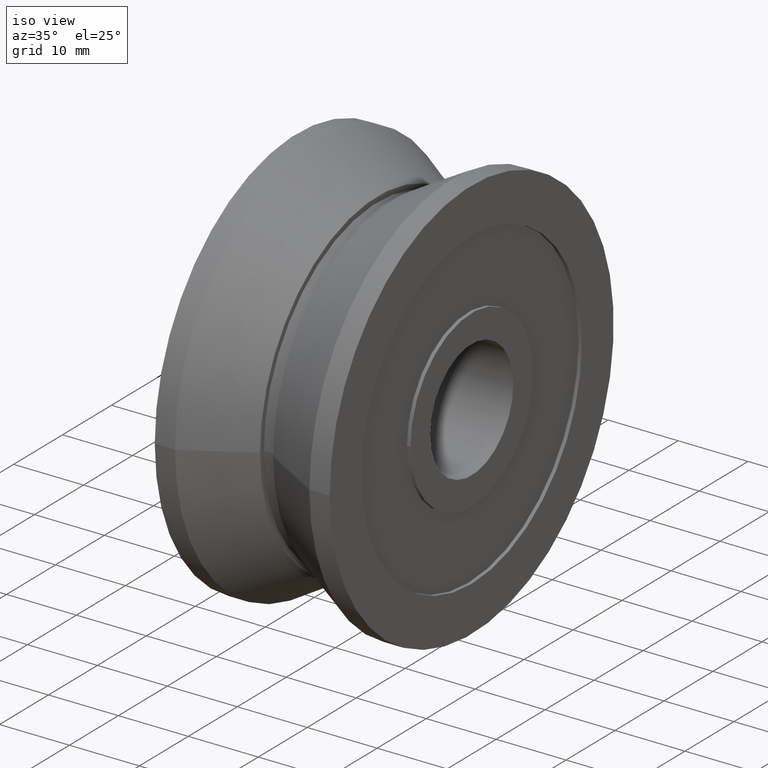
[diagram: clean part render]
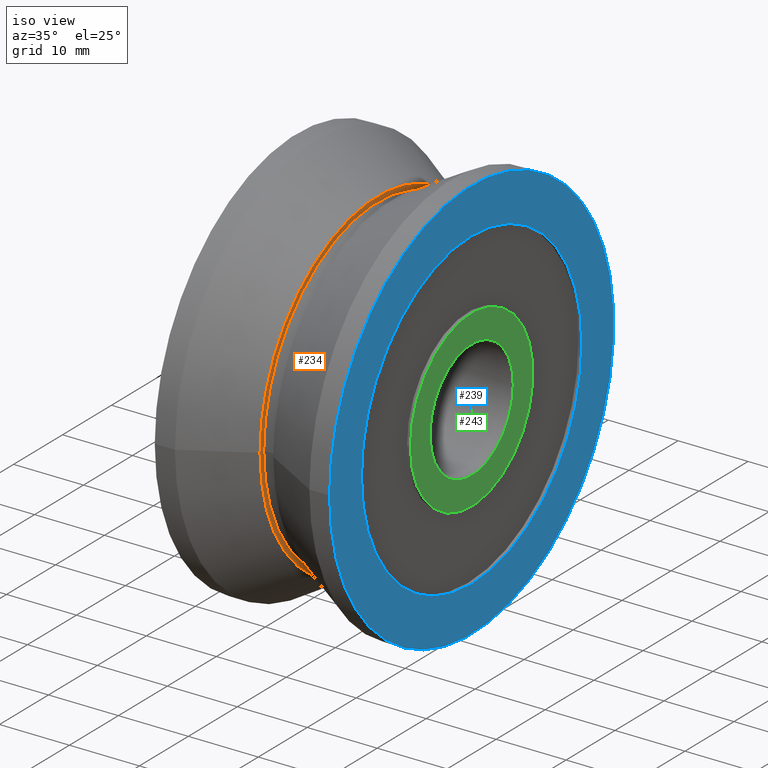
[diagram: same view with three faces highlighted in distinct colors, each labeled with its STEP entity id]
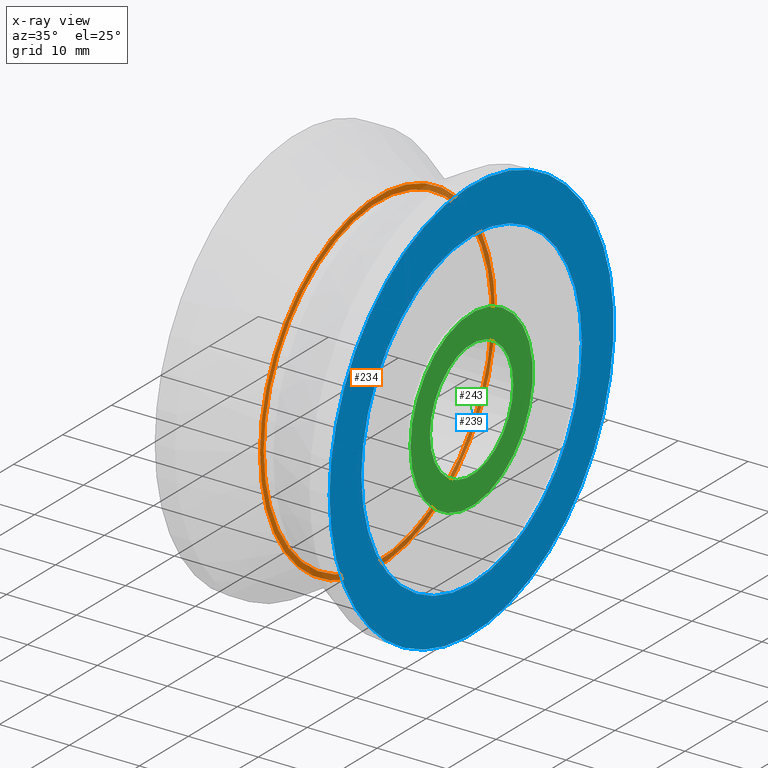
[diagram: x-ray of the same camera — body ghosted, the three highlighted faces saturated]
A machine part, iso view with three faces highlighted in distinct colors.
The next image is the same camera in x-ray (body ghosted, the three faces saturated) — at least one of them is partly hidden behind the body in this view.
Their STEP definitions:

[orange] entity #234 — the highlighted planar face has unit normal (1, 0, 0).
#50=FACE_BOUND('',#84,.T.);
#62=FACE_OUTER_BOUND('',#83,.T.);
#83=EDGE_LOOP('',(#185));
#84=EDGE_LOOP('',(#186));
#106=CIRCLE('',#282,24.0014773719376);
#107=CIRCLE('',#284,23.25);
#124=VERTEX_POINT('',#413);
#125=VERTEX_POINT('',#417);
#145=EDGE_CURVE('',#124,#124,#106,.T.);
#147=EDGE_CURVE('',#125,#125,#107,.T.);
#185=ORIENTED_EDGE('',*,*,#145,.T.);
#186=ORIENTED_EDGE('',*,*,#147,.F.);
#222=PLANE('',#283);
#234=ADVANCED_FACE('',(#62,#50),#222,.T.);
#282=AXIS2_PLACEMENT_3D('',#414,#337,#338);
#283=AXIS2_PLACEMENT_3D('',#416,#340,#341);
#284=AXIS2_PLACEMENT_3D('',#418,#342,#343);
#337=DIRECTION('center_axis',(1.,0.,0.));
#338=DIRECTION('ref_axis',(0.,1.,0.));
#340=DIRECTION('center_axis',(1.,0.,0.));
#341=DIRECTION('ref_axis',(0.,0.,-1.));
#342=DIRECTION('center_axis',(1.,0.,0.));
#343=DIRECTION('ref_axis',(0.,1.,0.));
#413=CARTESIAN_POINT('',(-0.95,-24.0014773719376,-2.9393332438351E-15));
#414=CARTESIAN_POINT('Origin',(-0.95,0.,0.));
#416=CARTESIAN_POINT('Origin',(-0.95,23.6257386859688,0.));
#417=CARTESIAN_POINT('',(-0.950000000000002,-23.25,-2.8473038080176E-15));
#418=CARTESIAN_POINT('Origin',(-0.950000000000002,0.,0.));

[blue] entity #239 — the highlighted planar face has unit normal (1, 0, 0).
#52=FACE_BOUND('',#91,.T.);
#67=FACE_OUTER_BOUND('',#90,.T.);
#90=EDGE_LOOP('',(#201));
#91=EDGE_LOOP('',(#202));
#111=CIRCLE('',#292,29.);
#112=CIRCLE('',#294,22.5);
#129=VERTEX_POINT('',#431);
#130=VERTEX_POINT('',#435);
#153=EDGE_CURVE('',#129,#129,#111,.T.);
#155=EDGE_CURVE('',#130,#130,#112,.T.);
#201=ORIENTED_EDGE('',*,*,#153,.T.);
#202=ORIENTED_EDGE('',*,*,#155,.F.);
#224=PLANE('',#293);
#239=ADVANCED_FACE('',(#67,#52),#224,.T.);
#292=AXIS2_PLACEMENT_3D('',#432,#360,#361);
#293=AXIS2_PLACEMENT_3D('',#434,#363,#364);
#294=AXIS2_PLACEMENT_3D('',#436,#365,#366);
#360=DIRECTION('center_axis',(1.,0.,0.));
#361=DIRECTION('ref_axis',(0.,1.,0.));
#363=DIRECTION('center_axis',(1.,0.,0.));
#364=DIRECTION('ref_axis',(0.,0.,-1.));
#365=DIRECTION('center_axis',(1.,0.,0.));
#366=DIRECTION('ref_axis',(0.,1.,0.));
#431=CARTESIAN_POINT('',(12.5,-29.,-3.55147571752732E-15));
#432=CARTESIAN_POINT('Origin',(12.5,0.,0.));
#434=CARTESIAN_POINT('Origin',(12.5,25.75,0.));
#435=CARTESIAN_POINT('',(12.5,-22.5,-2.75545529808154E-15));
#436=CARTESIAN_POINT('Origin',(12.5,0.,0.));

[green] entity #243 — the highlighted planar face has unit normal (1, 0, 0).
#54=FACE_BOUND('',#97,.T.);
#71=FACE_OUTER_BOUND('',#96,.T.);
#96=EDGE_LOOP('',(#213));
#97=EDGE_LOOP('',(#214));
#115=CIRCLE('',#300,12.5);
#116=CIRCLE('',#302,8.5);
#133=VERTEX_POINT('',#445);
#134=VERTEX_POINT('',#449);
#159=EDGE_CURVE('',#133,#133,#115,.T.);
#161=EDGE_CURVE('',#134,#134,#116,.T.);
#213=ORIENTED_EDGE('',*,*,#159,.T.);
#214=ORIENTED_EDGE('',*,*,#161,.F.);
#226=PLANE('',#301);
#243=ADVANCED_FACE('',(#71,#54),#226,.T.);
#300=AXIS2_PLACEMENT_3D('',#446,#378,#379);
#301=AXIS2_PLACEMENT_3D('',#448,#381,#382);
#302=AXIS2_PLACEMENT_3D('',#450,#383,#384);
#378=DIRECTION('center_axis',(1.,0.,0.));
#379=DIRECTION('ref_axis',(0.,1.,0.));
#381=DIRECTION('center_axis',(1.,0.,0.));
#382=DIRECTION('ref_axis',(0.,0.,-1.));
#383=DIRECTION('center_axis',(1.,0.,0.));
#384=DIRECTION('ref_axis',(0.,1.,0.));
#445=CARTESIAN_POINT('',(12.5,-12.5,-1.53080849893419E-15));
#446=CARTESIAN_POINT('Origin',(12.5,0.,0.));
#448=CARTESIAN_POINT('Origin',(12.5,10.5,0.));
#449=CARTESIAN_POINT('',(12.5,-8.5,-1.04094977927525E-15));
#450=CARTESIAN_POINT('Origin',(12.5,0.,0.));